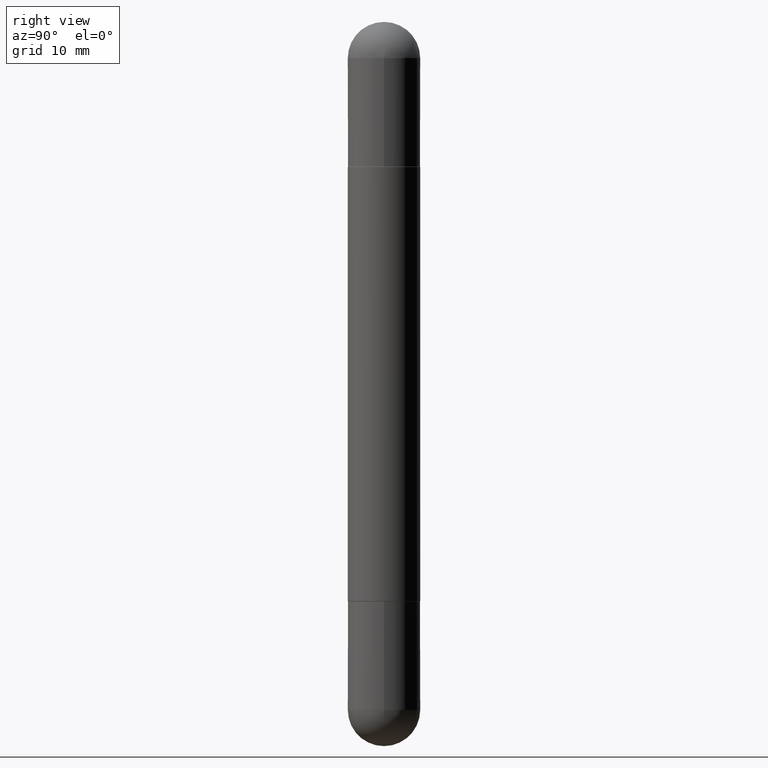
[diagram: clean part render]
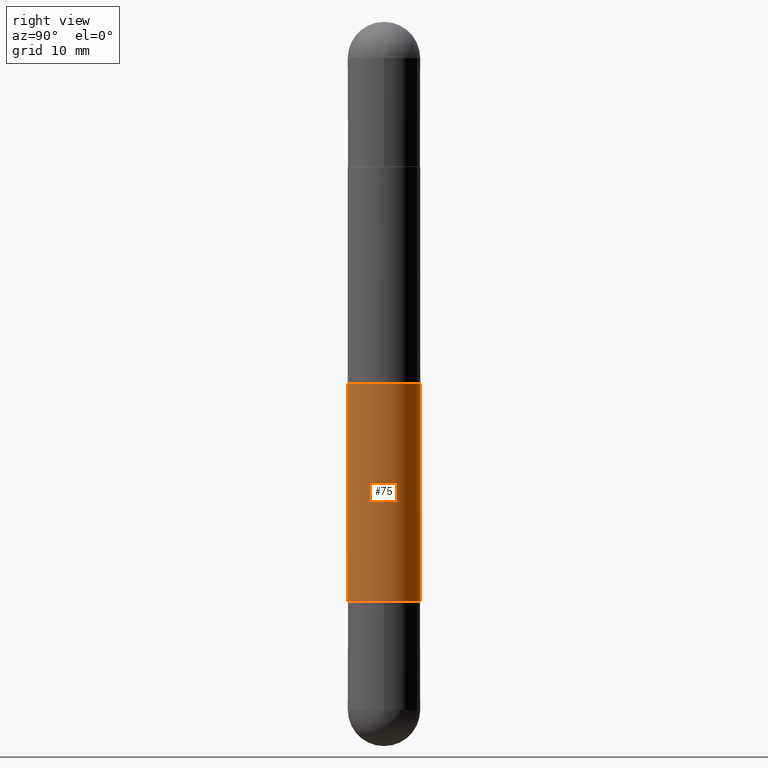
[diagram: same view with one face highlighted and labeled with its STEP entity id]
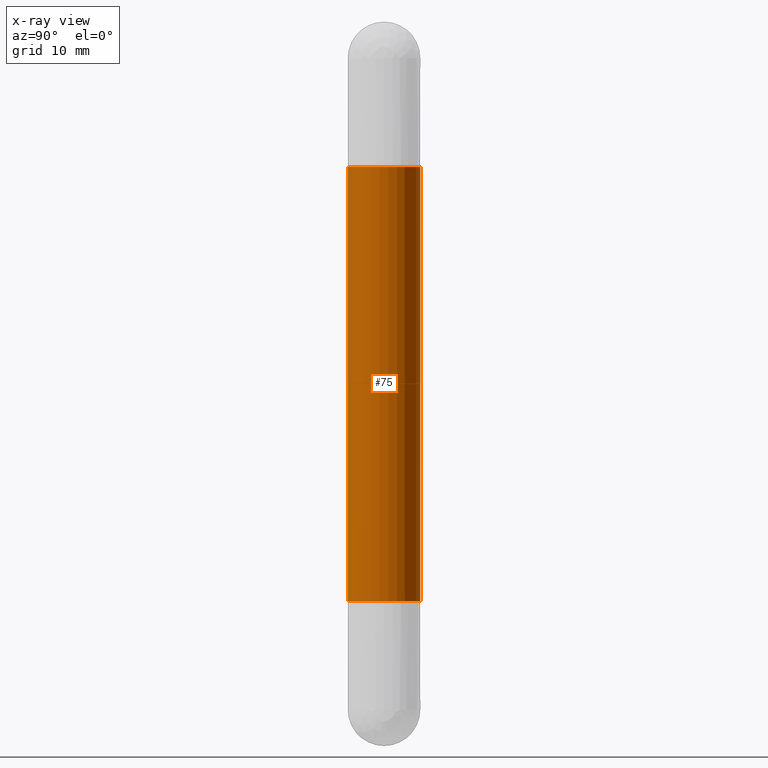
[diagram: x-ray of the same camera — body ghosted, the highlighted face saturated]
A machine part, right view. The second image highlights one B-rep face of the part: STEP entity #75.
The next image is the same camera in x-ray: the body ghosted, the highlighted face saturated — about 0% of this face is hidden behind the body in this view.
In plain terms, the highlighted cylindrical surface (edge-blend (fillet) strip) has radius 3.175 mm, axis along (-0, 0, -1).
Its self-contained STEP definition (entity closure, byte-faithful):
#4 = DIRECTION ( 'NONE',  ( -2.444981061416011497E-29, 3.492179817113241133E-15, -1.000000000000000000 ) ) ;
#7 = AXIS2_PLACEMENT_3D ( 'NONE', #325, #4, #514 ) ;
#39 = AXIS2_PLACEMENT_3D ( 'NONE', #87, #608, #729 ) ;
#75 = ADVANCED_FACE ( 'NONE', ( #200 ), #782, .T. ) ;
#87 = CARTESIAN_POINT ( 'NONE',  ( 4.887517141770606261E-29, -6.980867454409367060E-15, -0.5010000000000010001 ) ) ;
#110 = EDGE_CURVE ( 'NONE', #152, #477, #267, .T. ) ;
#152 = VERTEX_POINT ( 'NONE', #385 ) ;
#158 = CARTESIAN_POINT ( 'NONE',  ( 4.887517141770606261E-29, -6.980867454409367060E-15, -1.998999999999999666 ) ) ;
#200 = FACE_OUTER_BOUND ( 'NONE', #428, .T. ) ;
#221 = EDGE_CURVE ( 'NONE', #811, #152, #792, .T. ) ;
#267 = LINE ( 'NONE', #328, #562 ) ;
#268 = VERTEX_POINT ( 'NONE', #467 ) ;
#273 = CARTESIAN_POINT ( 'NONE',  ( -8.728703347107842263E-16, -0.1250000000000001388, -2.500000000000001332 ) ) ;
#286 = ORIENTED_EDGE ( 'NONE', *, *, #221, .F. ) ;
#302 = DIRECTION ( 'NONE',  ( -2.444981061416011497E-29, 3.492179817113241133E-15, 1.000000000000000000 ) ) ;
#313 = EDGE_CURVE ( 'NONE', #268, #477, #773, .T. ) ;
#325 = CARTESIAN_POINT ( 'NONE',  ( 0.000000000000000000, 0.000000000000000000, -2.500000000000000444 ) ) ;
#328 = CARTESIAN_POINT ( 'NONE',  ( 8.575622497214423328E-16, 0.1250000000000001388, -2.500000000000000000 ) ) ;
#351 = DIRECTION ( 'NONE',  ( -6.982962677686265922E-15, -1.000000000000000000, 4.370956789862811683E-15 ) ) ;
#385 = CARTESIAN_POINT ( 'NONE',  ( 8.575622497214919324E-16, 0.1249999999999932693, -0.5010000000000006670 ) ) ;
#416 = AXIS2_PLACEMENT_3D ( 'NONE', #158, #302, #351 ) ;
#428 = EDGE_LOOP ( 'NONE', ( #609, #286, #432, #504 ) ) ;
#432 = ORIENTED_EDGE ( 'NONE', *, *, #623, .T. ) ;
#444 = DIRECTION ( 'NONE',  ( -2.444981061416011497E-29, 3.492179817113241133E-15, -1.000000000000000000 ) ) ;
#450 = DIRECTION ( 'NONE',  ( -2.444981061416011497E-29, 3.492179817113241133E-15, -1.000000000000000000 ) ) ;
#467 = CARTESIAN_POINT ( 'NONE',  ( -8.728703347107363030E-16, -0.1250000000000072442, -1.998999999999999000 ) ) ;
#477 = VERTEX_POINT ( 'NONE', #751 ) ;
#504 = ORIENTED_EDGE ( 'NONE', *, *, #313, .T. ) ;
#514 = DIRECTION ( 'NONE',  ( -6.982962677686265922E-15, -1.000000000000000000, -4.370956789862816416E-15 ) ) ;
#554 = VECTOR ( 'NONE', #450, 39.37007874015748143 ) ;
#562 = VECTOR ( 'NONE', #444, 39.37007874015748143 ) ;
#585 = LINE ( 'NONE', #273, #554 ) ;
#608 = DIRECTION ( 'NONE',  ( 2.444981061416011497E-29, -3.492179817113241133E-15, 1.000000000000000000 ) ) ;
#609 = ORIENTED_EDGE ( 'NONE', *, *, #110, .F. ) ;
#623 = EDGE_CURVE ( 'NONE', #811, #268, #585, .T. ) ;
#716 = CARTESIAN_POINT ( 'NONE',  ( -8.728703347107364016E-16, -0.1250000000000072720, -0.5010000000000014442 ) ) ;
#729 = DIRECTION ( 'NONE',  ( -6.982962677686265922E-15, -1.000000000000000000, -3.278217592397108762E-15 ) ) ;
#751 = CARTESIAN_POINT ( 'NONE',  ( 8.575622497214732956E-16, 0.1249999999999932693, -1.999000000000000110 ) ) ;
#773 = CIRCLE ( 'NONE', #416, 0.1250000000000002776 ) ;
#782 = CYLINDRICAL_SURFACE ( 'NONE', #7, 0.1250000000000001388 ) ;
#792 = CIRCLE ( 'NONE', #39, 0.1250000000000002776 ) ;
#811 = VERTEX_POINT ( 'NONE', #716 ) ;